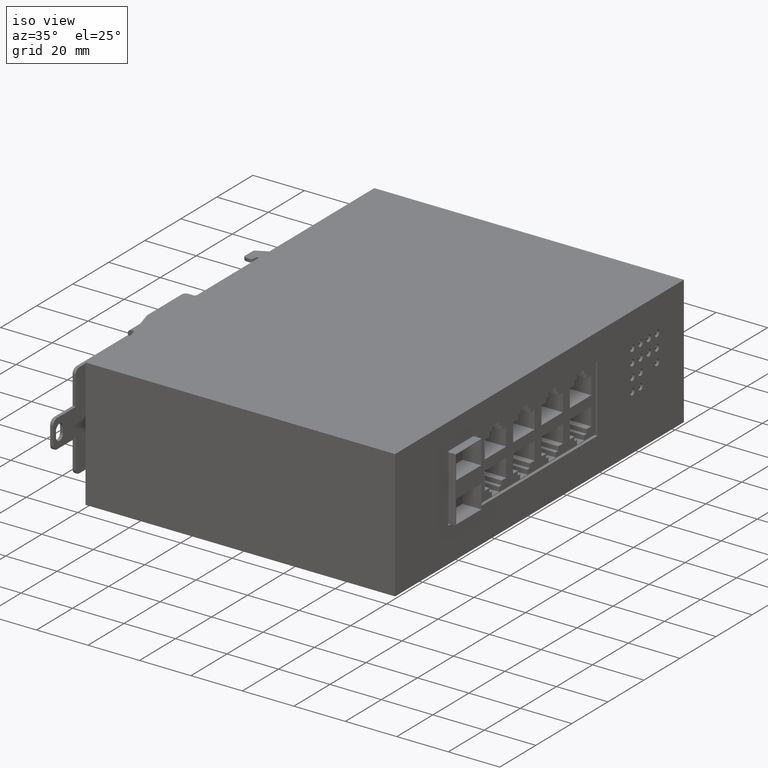
[diagram: clean part render]
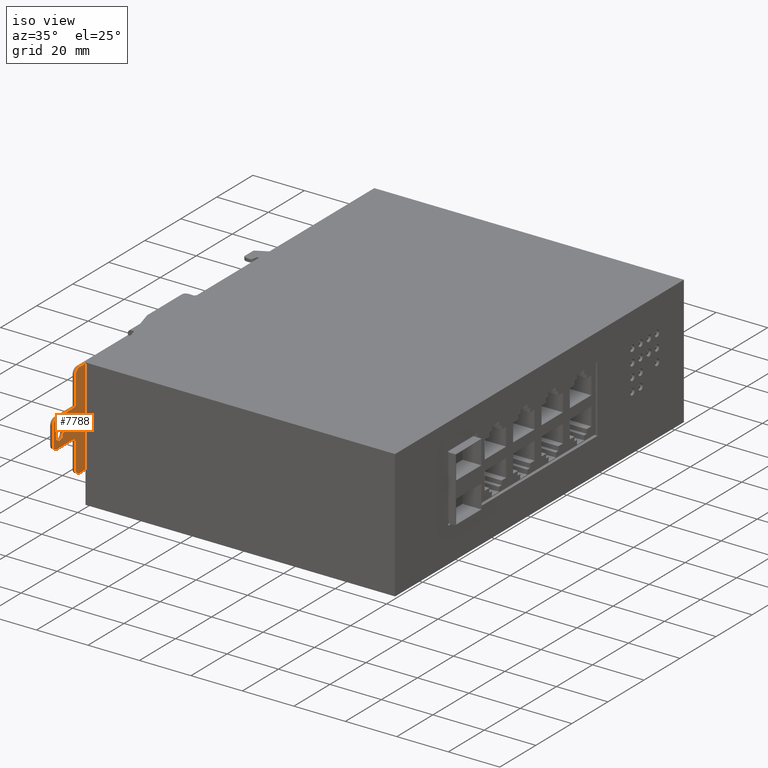
[diagram: same view with one face highlighted and labeled with its STEP entity id]
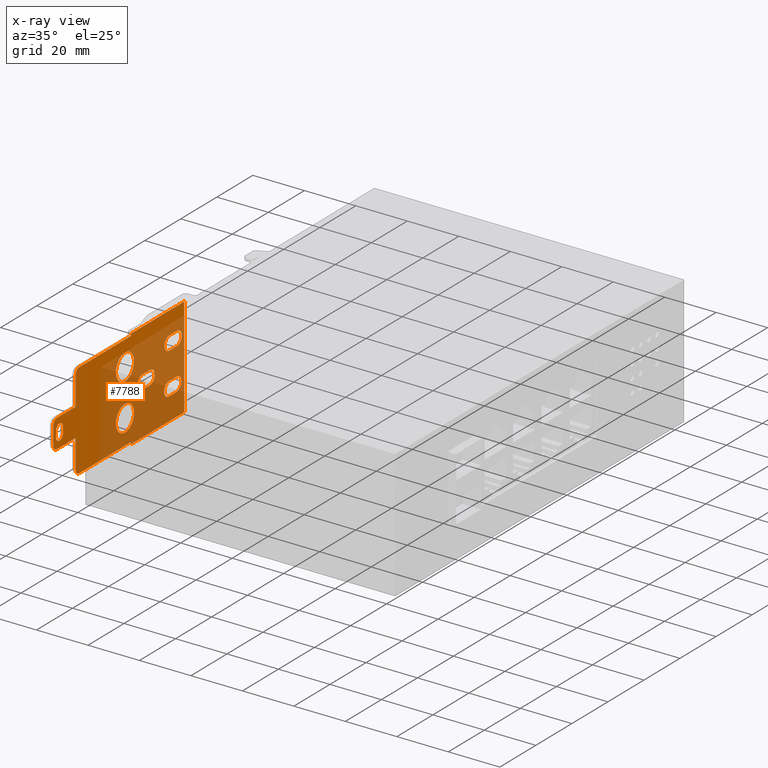
[diagram: x-ray of the same camera — body ghosted, the highlighted face saturated]
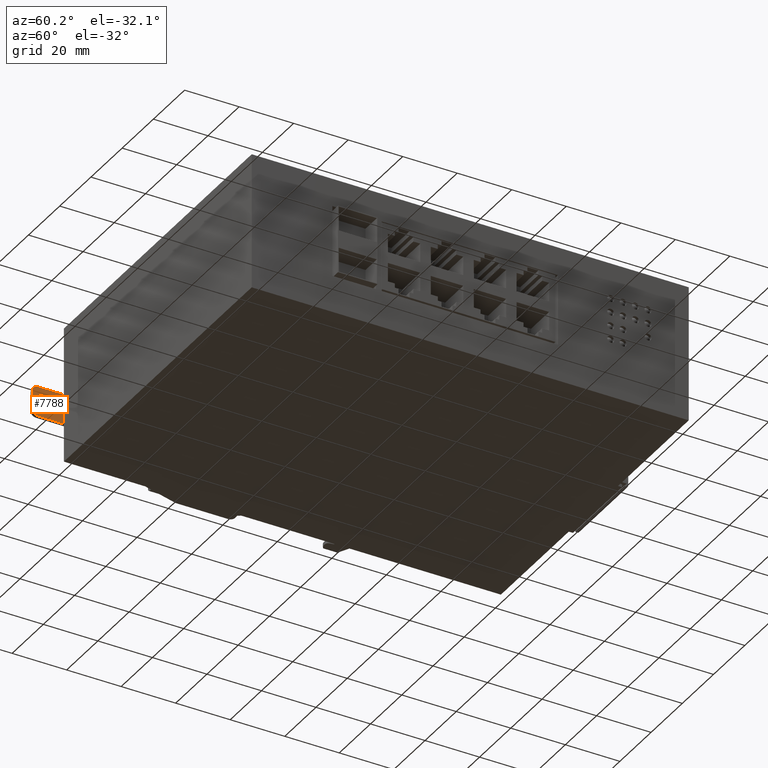
[diagram: same view with one face highlighted and labeled with its STEP entity id]
A machine part, iso view. The second image highlights one B-rep face of the part: STEP entity #7788.
The next image is the same camera in x-ray: the body ghosted, the highlighted face saturated — about 60% of this face is hidden behind the body in this view.
A second angle (auxiliary view) of the same face is appended — the face is thin or edge-on in the first view.
In plain terms, the highlighted planar face has unit normal (-1, 0, 0).
Its self-contained STEP definition (entity closure, byte-faithful):
#94 = EDGE_CURVE ( 'NONE', #6511, #10669, #11397, .T. ) ;
#101 = EDGE_CURVE ( 'NONE', #12217, #12112, #12518, .T. ) ;
#165 = ORIENTED_EDGE ( 'NONE', *, *, #7660, .F. ) ;
#315 = DIRECTION ( 'NONE',  ( 0.000000000000000000, 0.000000000000000000, 1.000000000000000000 ) ) ;
#398 = VECTOR ( 'NONE', #6258, 39.37007874015748143 ) ;
#415 = DIRECTION ( 'NONE',  ( 1.000000000000000000, -0.000000000000000000, -0.000000000000000000 ) ) ;
#424 = CARTESIAN_POINT ( 'NONE',  ( -0.1732283464566929387, 1.657480314960630086, 1.088582677165354173 ) ) ;
#425 = DIRECTION ( 'NONE',  ( 1.000000000000000000, -0.000000000000000000, -0.000000000000000000 ) ) ;
#485 = CARTESIAN_POINT ( 'NONE',  ( -0.1732283464566929387, -0.2283464566929138684, 1.023622047244094668 ) ) ;
#490 = EDGE_CURVE ( 'NONE', #14855, #6883, #12954, .T. ) ;
#556 = CIRCLE ( 'NONE', #14512, 0.1968503937007874405 ) ;
#585 = ORIENTED_EDGE ( 'NONE', *, *, #2578, .F. ) ;
#587 = CARTESIAN_POINT ( 'NONE',  ( -0.1732283464566929387, 0.2027559055118112741, 1.639763779527559029 ) ) ;
#656 = EDGE_CURVE ( 'NONE', #12631, #16464, #1152, .T. ) ;
#659 = CARTESIAN_POINT ( 'NONE',  ( -0.1732283464566929387, 0.2027559055118110243, 0.3287401574803149873 ) ) ;
#725 = VECTOR ( 'NONE', #12189, 39.37007874015748143 ) ;
#753 = CARTESIAN_POINT ( 'NONE',  ( -0.1732283464566929387, 2.574803149606299968, 1.200787401574803237 ) ) ;
#835 = DIRECTION ( 'NONE',  ( -0.000000000000000000, -0.000000000000000000, -1.000000000000000000 ) ) ;
#871 = DIRECTION ( 'NONE',  ( 0.000000000000000000, 0.000000000000000000, 1.000000000000000000 ) ) ;
#900 = DIRECTION ( 'NONE',  ( -0.000000000000000000, 0.000000000000000000, -1.000000000000000000 ) ) ;
#905 = CARTESIAN_POINT ( 'NONE',  ( -0.1732283464566929387, 1.279527559055118280, 1.141732283464567121 ) ) ;
#915 = LINE ( 'NONE', #16916, #398 ) ;
#1152 = LINE ( 'NONE', #6496, #14158 ) ;
#1162 = VERTEX_POINT ( 'NONE', #12070 ) ;
#1166 = ORIENTED_EDGE ( 'NONE', *, *, #4621, .F. ) ;
#1172 = CARTESIAN_POINT ( 'NONE',  ( -0.1732283464566929387, 2.413385826771653697, 1.194881889763779625 ) ) ;
#1209 = CARTESIAN_POINT ( 'NONE',  ( -0.1732283464566929387, 0.2814960629921260393, 1.718503937007874072 ) ) ;
#1265 = EDGE_CURVE ( 'NONE', #16464, #6652, #7267, .T. ) ;
#1292 = EDGE_CURVE ( 'NONE', #12112, #3278, #16467, .T. ) ;
#1337 = DIRECTION ( 'NONE',  ( -0.000000000000000000, -1.000000000000000000, 0.000000000000000000 ) ) ;
#1417 = ORIENTED_EDGE ( 'NONE', *, *, #94, .F. ) ;
#1481 = EDGE_CURVE ( 'NONE', #6883, #14855, #556, .T. ) ;
#1516 = ORIENTED_EDGE ( 'NONE', *, *, #17059, .F. ) ;
#1637 = DIRECTION ( 'NONE',  ( 1.000000000000000000, -0.000000000000000000, -0.000000000000000000 ) ) ;
#1666 = EDGE_CURVE ( 'NONE', #8170, #8430, #3731, .T. ) ;
#1777 = CARTESIAN_POINT ( 'NONE',  ( -0.1732283464566929387, -0.2086614173228350244, 1.122047244094488194 ) ) ;
#1782 = VERTEX_POINT ( 'NONE', #1172 ) ;
#1803 = EDGE_CURVE ( 'NONE', #8430, #16254, #915, .T. ) ;
#1909 = DIRECTION ( 'NONE',  ( 0.000000000000000000, 0.000000000000000000, 1.000000000000000000 ) ) ;
#1928 = EDGE_LOOP ( 'NONE', ( #5544, #6425, #16291, #12032, #12642, #15337, #11822, #165, #10998, #13557, #11782, #12809, #14365, #15420, #11925, #12083 ) ) ;
#1981 = EDGE_CURVE ( 'NONE', #16832, #4563, #10666, .T. ) ;
#2172 = CARTESIAN_POINT ( 'NONE',  ( -0.1732283464566929387, 2.574803149606299968, 1.718503937007874072 ) ) ;
#2205 = DIRECTION ( 'NONE',  ( 0.000000000000000000, 0.000000000000000000, 1.000000000000000000 ) ) ;
#2217 = AXIS2_PLACEMENT_3D ( 'NONE', #16691, #12756, #1909 ) ;
#2227 = CARTESIAN_POINT ( 'NONE',  ( -0.1732283464566929387, 0.2027559055118111075, 0.7677165354330708347 ) ) ;
#2307 = CARTESIAN_POINT ( 'NONE',  ( -0.1732283464566929387, 1.279527559055118280, 0.4330708661417322913 ) ) ;
#2333 = AXIS2_PLACEMENT_3D ( 'NONE', #4600, #415, #3290 ) ;
#2367 = CIRCLE ( 'NONE', #14108, 0.07874015748031462647 ) ;
#2437 = DIRECTION ( 'NONE',  ( -1.000000000000000000, 0.000000000000000000, 0.000000000000000000 ) ) ;
#2456 = CARTESIAN_POINT ( 'NONE',  ( -0.1732283464566929387, 0.2814960629921259838, 0.3287401574803149873 ) ) ;
#2477 = AXIS2_PLACEMENT_3D ( 'NONE', #7952, #8307, #4203 ) ;
#2554 = AXIS2_PLACEMENT_3D ( 'NONE', #14743, #12543, #315 ) ;
#2558 = CARTESIAN_POINT ( 'NONE',  ( -0.1732283464566929387, 2.574803149606299968, 1.750000000000000222 ) ) ;
#2566 = LINE ( 'NONE', #7554, #8246 ) ;
#2578 = EDGE_CURVE ( 'NONE', #7851, #14199, #15436, .T. ) ;
#2824 = CARTESIAN_POINT ( 'NONE',  ( -0.1732283464566929387, 2.574803149606299968, 1.194881889763779625 ) ) ;
#2995 = CARTESIAN_POINT ( 'NONE',  ( -0.1732283464566929387, 1.822834645669291431, 0.8799212598425197873 ) ) ;
#3016 = CARTESIAN_POINT ( 'NONE',  ( -0.1732283464566929387, 1.409448818897637734, 0.2185039370078739884 ) ) ;
#3176 = VERTEX_POINT ( 'NONE', #3016 ) ;
#3178 = VERTEX_POINT ( 'NONE', #485 ) ;
#3195 = ORIENTED_EDGE ( 'NONE', *, *, #1666, .F. ) ;
#3262 = DIRECTION ( 'NONE',  ( 1.000000000000000000, -0.000000000000000000, -0.000000000000000000 ) ) ;
#3278 = VERTEX_POINT ( 'NONE', #15673 ) ;
#3290 = DIRECTION ( 'NONE',  ( 0.000000000000000000, 0.000000000000000000, 1.000000000000000000 ) ) ;
#3301 = LINE ( 'NONE', #13530, #10068 ) ;
#3483 = DIRECTION ( 'NONE',  ( -0.000000000000000000, -0.000000000000000000, -1.000000000000000000 ) ) ;
#3489 = AXIS2_PLACEMENT_3D ( 'NONE', #8540, #7073, #16416 ) ;
#3529 = AXIS2_PLACEMENT_3D ( 'NONE', #14518, #9270, #9536 ) ;
#3535 = AXIS2_PLACEMENT_3D ( 'NONE', #3768, #6761, #5370 ) ;
#3566 = CARTESIAN_POINT ( 'NONE',  ( -0.1732283464566929387, 1.409448818897637734, 1.718503937007874072 ) ) ;
#3567 = ORIENTED_EDGE ( 'NONE', *, *, #1981, .F. ) ;
#3615 = VERTEX_POINT ( 'NONE', #2995 ) ;
#3647 = CARTESIAN_POINT ( 'NONE',  ( -0.1732283464566929387, 1.822834645669291431, 1.088582677165354173 ) ) ;
#3681 = ORIENTED_EDGE ( 'NONE', *, *, #101, .F. ) ;
#3731 = CIRCLE ( 'NONE', #2333, 0.1043307086614173040 ) ;
#3768 = CARTESIAN_POINT ( 'NONE',  ( -0.1732283464566929387, 2.574803149606299968, 1.750000000000000222 ) ) ;
#3867 = FACE_BOUND ( 'NONE', #13847, .T. ) ;
#3877 = CARTESIAN_POINT ( 'NONE',  ( -0.1732283464566929387, 1.409448818897637734, 1.750000000000000222 ) ) ;
#4043 = DIRECTION ( 'NONE',  ( 0.000000000000000000, 0.000000000000000000, 1.000000000000000000 ) ) ;
#4056 = ORIENTED_EDGE ( 'NONE', *, *, #5665, .F. ) ;
#4130 = CIRCLE ( 'NONE', #12506, 0.07874015748031495954 ) ;
#4203 = DIRECTION ( 'NONE',  ( 0.000000000000000000, 0.000000000000000000, 1.000000000000000000 ) ) ;
#4321 = CARTESIAN_POINT ( 'NONE',  ( -0.1732283464566929387, -0.07086614173228339419, 0.9448818897637796255 ) ) ;
#4363 = DIRECTION ( 'NONE',  ( 0.000000000000000000, 0.000000000000000000, 1.000000000000000000 ) ) ;
#4382 = VECTOR ( 'NONE', #6233, 39.37007874015748143 ) ;
#4534 = CARTESIAN_POINT ( 'NONE',  ( -0.1732283464566929387, 2.574803149606299968, 0.2185039370078740439 ) ) ;
#4563 = VERTEX_POINT ( 'NONE', #905 ) ;
#4581 = DIRECTION ( 'NONE',  ( 0.000000000000000000, 0.000000000000000000, 1.000000000000000000 ) ) ;
#4600 = CARTESIAN_POINT ( 'NONE',  ( -0.1732283464566929387, 2.405511811023622215, 0.6692913385826771977 ) ) ;
#4621 = EDGE_CURVE ( 'NONE', #10669, #1782, #9484, .T. ) ;
#4632 = CIRCLE ( 'NONE', #10499, 0.1043307086614173040 ) ;
#4649 = CIRCLE ( 'NONE', #14988, 0.07874015748031489015 ) ;
#4859 = ORIENTED_EDGE ( 'NONE', *, *, #13173, .F. ) ;
#4932 = CARTESIAN_POINT ( 'NONE',  ( -0.1732283464566929387, 1.279527559055118280, 0.6299212598425196763 ) ) ;
#4968 = ORIENTED_EDGE ( 'NONE', *, *, #1803, .F. ) ;
#4983 = DIRECTION ( 'NONE',  ( 1.000000000000000000, -0.000000000000000000, -0.000000000000000000 ) ) ;
#5000 = CARTESIAN_POINT ( 'NONE',  ( -0.1732283464566929387, 0.2027559055118111075, 1.750000000000000222 ) ) ;
#5057 = VERTEX_POINT ( 'NONE', #8319 ) ;
#5091 = ORIENTED_EDGE ( 'NONE', *, *, #1481, .F. ) ;
#5154 = EDGE_LOOP ( 'NONE', ( #4056, #1166, #1417, #14311 ) ) ;
#5180 = PLANE ( 'NONE',  #3535 ) ;
#5244 = DIRECTION ( 'NONE',  ( 0.000000000000000000, -1.000000000000000000, -0.000000000000000000 ) ) ;
#5297 = EDGE_LOOP ( 'NONE', ( #16309, #5457, #8417, #3681 ) ) ;
#5351 = VERTEX_POINT ( 'NONE', #16786 ) ;
#5370 = DIRECTION ( 'NONE',  ( 0.000000000000000000, 0.000000000000000000, 1.000000000000000000 ) ) ;
#5427 = CARTESIAN_POINT ( 'NONE',  ( -0.1732283464566929387, 2.413385826771653697, 1.403543307086614345 ) ) ;
#5437 = EDGE_CURVE ( 'NONE', #14199, #3178, #10869, .T. ) ;
#5457 = ORIENTED_EDGE ( 'NONE', *, *, #12148, .F. ) ;
#5544 = ORIENTED_EDGE ( 'NONE', *, *, #11297, .F. ) ;
#5611 = CARTESIAN_POINT ( 'NONE',  ( -0.1732283464566929387, 2.405511811023622215, 0.5649606299212599492 ) ) ;
#5626 = DIRECTION ( 'NONE',  ( 1.000000000000000000, -0.000000000000000000, -0.000000000000000000 ) ) ;
#5665 = EDGE_CURVE ( 'NONE', #1782, #14271, #4632, .T. ) ;
#5673 = CARTESIAN_POINT ( 'NONE',  ( -0.1732283464566929387, 1.279527559055118280, 0.6299212598425196763 ) ) ;
#5703 = ORIENTED_EDGE ( 'NONE', *, *, #16370, .F. ) ;
#5781 = DIRECTION ( 'NONE',  ( 0.000000000000000000, 0.000000000000000000, 1.000000000000000000 ) ) ;
#5862 = CIRCLE ( 'NONE', #12559, 0.07874015748031502893 ) ;
#5989 = AXIS2_PLACEMENT_3D ( 'NONE', #4932, #3262, #2205 ) ;
#6018 = CARTESIAN_POINT ( 'NONE',  ( -0.1732283464566929387, 1.279527559055118280, 0.8267716535433071723 ) ) ;
#6039 = VECTOR ( 'NONE', #7393, 39.37007874015748143 ) ;
#6171 = VECTOR ( 'NONE', #4043, 39.37007874015748143 ) ;
#6185 = VERTEX_POINT ( 'NONE', #2227 ) ;
#6201 = ORIENTED_EDGE ( 'NONE', *, *, #16965, .F. ) ;
#6233 = DIRECTION ( 'NONE',  ( -0.000000000000000000, -1.000000000000000000, 0.000000000000000000 ) ) ;
#6258 = DIRECTION ( 'NONE',  ( -0.000000000000000000, -1.000000000000000000, 0.000000000000000000 ) ) ;
#6264 = VERTEX_POINT ( 'NONE', #16660 ) ;
#6363 = DIRECTION ( 'NONE',  ( 1.000000000000000000, -0.000000000000000000, -0.000000000000000000 ) ) ;
#6425 = ORIENTED_EDGE ( 'NONE', *, *, #1265, .F. ) ;
#6492 = FACE_OUTER_BOUND ( 'NONE', #1928, .T. ) ;
#6496 = CARTESIAN_POINT ( 'NONE',  ( -0.1732283464566929387, 0.2027559055118111075, 1.750000000000000222 ) ) ;
#6511 = VERTEX_POINT ( 'NONE', #14070 ) ;
#6595 = CIRCLE ( 'NONE', #3489, 0.1968503937007873017 ) ;
#6613 = CARTESIAN_POINT ( 'NONE',  ( -0.1732283464566929387, -0.2086614173228348301, 1.200787401574803237 ) ) ;
#6652 = VERTEX_POINT ( 'NONE', #1209 ) ;
#6698 = CARTESIAN_POINT ( 'NONE',  ( -0.1732283464566929387, 2.574803149606299968, 0.2185039370078739884 ) ) ;
#6761 = DIRECTION ( 'NONE',  ( -1.000000000000000000, 0.000000000000000000, 0.000000000000000000 ) ) ;
#6854 = VERTEX_POINT ( 'NONE', #8393 ) ;
#6883 = VERTEX_POINT ( 'NONE', #6018 ) ;
#6899 = DIRECTION ( 'NONE',  ( 0.000000000000000000, 0.000000000000000000, 1.000000000000000000 ) ) ;
#6930 = EDGE_LOOP ( 'NONE', ( #3567, #5703 ) ) ;
#6975 = VERTEX_POINT ( 'NONE', #3566 ) ;
#7002 = DIRECTION ( 'NONE',  ( 0.000000000000000000, 1.000000000000000000, -0.000000000000000000 ) ) ;
#7073 = DIRECTION ( 'NONE',  ( 1.000000000000000000, -0.000000000000000000, -0.000000000000000000 ) ) ;
#7173 = LINE ( 'NONE', #4534, #16379 ) ;
#7195 = DIRECTION ( 'NONE',  ( 0.000000000000000000, 0.000000000000000000, 1.000000000000000000 ) ) ;
#7267 = CIRCLE ( 'NONE', #2217, 0.07874015748031448769 ) ;
#7316 = EDGE_CURVE ( 'NONE', #16737, #12631, #11506, .T. ) ;
#7379 = LINE ( 'NONE', #15590, #12829 ) ;
#7393 = DIRECTION ( 'NONE',  ( 0.000000000000000000, 1.000000000000000000, -0.000000000000000000 ) ) ;
#7487 = CARTESIAN_POINT ( 'NONE',  ( -0.1732283464566929387, 0.2814960629921260393, 0.2500000000000000000 ) ) ;
#7519 = CARTESIAN_POINT ( 'NONE',  ( -0.1732283464566929387, -0.1496062992125984370, 1.023622047244094668 ) ) ;
#7554 = CARTESIAN_POINT ( 'NONE',  ( -0.1732283464566929387, 1.409448818897637734, 1.750000000000000222 ) ) ;
#7633 = ORIENTED_EDGE ( 'NONE', *, *, #13035, .F. ) ;
#7660 = EDGE_CURVE ( 'NONE', #6185, #6264, #15322, .T. ) ;
#7788 = ADVANCED_FACE ( 'NONE', ( #9468, #6492, #17240, #10774, #13396, #3867, #15744 ), #5180, .F. ) ;
#7795 = DIRECTION ( 'NONE',  ( -1.000000000000000000, 0.000000000000000000, 0.000000000000000000 ) ) ;
#7802 = CARTESIAN_POINT ( 'NONE',  ( -0.1732283464566929387, 0.2027559055118110798, 1.200787401574803237 ) ) ;
#7809 = DIRECTION ( 'NONE',  ( 0.000000000000000000, 0.000000000000000000, 1.000000000000000000 ) ) ;
#7851 = VERTEX_POINT ( 'NONE', #8065 ) ;
#7908 = AXIS2_PLACEMENT_3D ( 'NONE', #16946, #4983, #12400 ) ;
#7943 = CARTESIAN_POINT ( 'NONE',  ( -0.1732283464566929387, 2.574803149606299968, 0.2500000000000000555 ) ) ;
#7952 = CARTESIAN_POINT ( 'NONE',  ( -0.1732283464566929387, 1.822834645669291431, 0.9842519685039370358 ) ) ;
#8065 = CARTESIAN_POINT ( 'NONE',  ( -0.1732283464566929387, -0.07086614173228339419, 1.023622047244094668 ) ) ;
#8170 = VERTEX_POINT ( 'NONE', #5611 ) ;
#8246 = VECTOR ( 'NONE', #900, 39.37007874015748143 ) ;
#8263 = VECTOR ( 'NONE', #15733, 39.37007874015748143 ) ;
#8307 = DIRECTION ( 'NONE',  ( 1.000000000000000000, -0.000000000000000000, -0.000000000000000000 ) ) ;
#8319 = CARTESIAN_POINT ( 'NONE',  ( -0.1732283464566929387, -0.2874015748031496509, 0.8464566929133858775 ) ) ;
#8393 = CARTESIAN_POINT ( 'NONE',  ( -0.1732283464566929387, 1.409448818897637734, 1.750000000000000222 ) ) ;
#8405 = EDGE_CURVE ( 'NONE', #15406, #6854, #10392, .T. ) ;
#8417 = ORIENTED_EDGE ( 'NONE', *, *, #1292, .F. ) ;
#8430 = VERTEX_POINT ( 'NONE', #17291 ) ;
#8540 = CARTESIAN_POINT ( 'NONE',  ( -0.1732283464566929387, 1.279527559055118280, 1.338582677165354395 ) ) ;
#8936 = DIRECTION ( 'NONE',  ( 0.000000000000000000, 0.000000000000000000, 1.000000000000000000 ) ) ;
#9057 = EDGE_CURVE ( 'NONE', #1162, #16737, #2367, .T. ) ;
#9143 = VECTOR ( 'NONE', #1337, 39.37007874015748143 ) ;
#9237 = EDGE_CURVE ( 'NONE', #5057, #1162, #11660, .T. ) ;
#9260 = EDGE_CURVE ( 'NONE', #6854, #6975, #2566, .T. ) ;
#9270 = DIRECTION ( 'NONE',  ( 1.000000000000000000, -0.000000000000000000, -0.000000000000000000 ) ) ;
#9384 = LINE ( 'NONE', #16024, #10918 ) ;
#9468 = FACE_BOUND ( 'NONE', #10019, .T. ) ;
#9484 = LINE ( 'NONE', #2824, #725 ) ;
#9536 = DIRECTION ( 'NONE',  ( 0.000000000000000000, 0.000000000000000000, 1.000000000000000000 ) ) ;
#9676 = EDGE_CURVE ( 'NONE', #16447, #6185, #16797, .T. ) ;
#9795 = VECTOR ( 'NONE', #12061, 39.37007874015748143 ) ;
#9968 = VECTOR ( 'NONE', #3483, 39.37007874015748143 ) ;
#10019 = EDGE_LOOP ( 'NONE', ( #16237, #7633, #16130, #585, #1516 ) ) ;
#10068 = VECTOR ( 'NONE', #7002, 39.37007874015748143 ) ;
#10263 = CARTESIAN_POINT ( 'NONE',  ( -0.1732283464566929387, 2.574803149606299968, 0.7677165354330708347 ) ) ;
#10271 = DIRECTION ( 'NONE',  ( 0.000000000000000000, 0.000000000000000000, 1.000000000000000000 ) ) ;
#10392 = LINE ( 'NONE', #14591, #13556 ) ;
#10395 = LINE ( 'NONE', #2172, #16096 ) ;
#10476 = DIRECTION ( 'NONE',  ( 0.000000000000000000, 0.000000000000000000, 1.000000000000000000 ) ) ;
#10499 = AXIS2_PLACEMENT_3D ( 'NONE', #16683, #425, #4363 ) ;
#10537 = EDGE_CURVE ( 'NONE', #14271, #6511, #17252, .T. ) ;
#10666 = CIRCLE ( 'NONE', #2554, 0.1968503937007873017 ) ;
#10669 = VERTEX_POINT ( 'NONE', #12093 ) ;
#10774 = FACE_BOUND ( 'NONE', #5154, .T. ) ;
#10863 = CIRCLE ( 'NONE', #2477, 0.1043307086614173040 ) ;
#10865 = CARTESIAN_POINT ( 'NONE',  ( -0.1732283464566929387, 2.248031496062992574, 1.299212598425196985 ) ) ;
#10869 = CIRCLE ( 'NONE', #16176, 0.07874015748031502893 ) ;
#10899 = EDGE_CURVE ( 'NONE', #14852, #16447, #4130, .T. ) ;
#10918 = VECTOR ( 'NONE', #12013, 39.37007874015748143 ) ;
#10970 = CARTESIAN_POINT ( 'NONE',  ( -0.1732283464566929387, 1.279527559055118280, 1.535433070866141669 ) ) ;
#10998 = ORIENTED_EDGE ( 'NONE', *, *, #9676, .F. ) ;
#11024 = CARTESIAN_POINT ( 'NONE',  ( -0.1732283464566929387, 2.574803149606299968, 1.088582677165354173 ) ) ;
#11254 = EDGE_CURVE ( 'NONE', #6264, #5057, #4649, .T. ) ;
#11297 = EDGE_CURVE ( 'NONE', #6652, #6975, #10395, .T. ) ;
#11397 = CIRCLE ( 'NONE', #13067, 0.1043307086614173040 ) ;
#11506 = LINE ( 'NONE', #753, #6039 ) ;
#11541 = CARTESIAN_POINT ( 'NONE',  ( -0.1732283464566929387, -0.2283464566929139239, 1.750000000000000222 ) ) ;
#11660 = LINE ( 'NONE', #14198, #11879 ) ;
#11686 = DIRECTION ( 'NONE',  ( 0.000000000000000000, 0.000000000000000000, 1.000000000000000000 ) ) ;
#11701 = EDGE_CURVE ( 'NONE', #13704, #15707, #5862, .T. ) ;
#11782 = ORIENTED_EDGE ( 'NONE', *, *, #11943, .F. ) ;
#11791 = CARTESIAN_POINT ( 'NONE',  ( -0.1732283464566929387, -0.2086614173228350244, 0.8464566929133858775 ) ) ;
#11822 = ORIENTED_EDGE ( 'NONE', *, *, #11254, .F. ) ;
#11879 = VECTOR ( 'NONE', #10271, 39.37007874015748143 ) ;
#11925 = ORIENTED_EDGE ( 'NONE', *, *, #8405, .T. ) ;
#11943 = EDGE_CURVE ( 'NONE', #12521, #14852, #14682, .T. ) ;
#11969 = CARTESIAN_POINT ( 'NONE',  ( -0.1732283464566929387, 2.240157480314960647, 0.7736220472440944462 ) ) ;
#12013 = DIRECTION ( 'NONE',  ( 0.000000000000000000, 0.000000000000000000, 1.000000000000000000 ) ) ;
#12032 = ORIENTED_EDGE ( 'NONE', *, *, #7316, .F. ) ;
#12061 = DIRECTION ( 'NONE',  ( -0.000000000000000000, -1.000000000000000000, 0.000000000000000000 ) ) ;
#12070 = CARTESIAN_POINT ( 'NONE',  ( -0.1732283464566929387, -0.2874015748031495954, 1.122047244094488194 ) ) ;
#12083 = ORIENTED_EDGE ( 'NONE', *, *, #9260, .T. ) ;
#12093 = CARTESIAN_POINT ( 'NONE',  ( -0.1732283464566929387, 2.248031496062992574, 1.194881889763779625 ) ) ;
#12112 = VERTEX_POINT ( 'NONE', #424 ) ;
#12148 = EDGE_CURVE ( 'NONE', #3278, #3615, #3301, .T. ) ;
#12189 = DIRECTION ( 'NONE',  ( 0.000000000000000000, 1.000000000000000000, -0.000000000000000000 ) ) ;
#12204 = CIRCLE ( 'NONE', #3529, 0.1043307086614173040 ) ;
#12217 = VERTEX_POINT ( 'NONE', #3647 ) ;
#12400 = DIRECTION ( 'NONE',  ( 0.000000000000000000, 0.000000000000000000, 1.000000000000000000 ) ) ;
#12506 = AXIS2_PLACEMENT_3D ( 'NONE', #2456, #7795, #8936 ) ;
#12518 = LINE ( 'NONE', #11024, #15861 ) ;
#12521 = VERTEX_POINT ( 'NONE', #16719 ) ;
#12543 = DIRECTION ( 'NONE',  ( 1.000000000000000000, -0.000000000000000000, -0.000000000000000000 ) ) ;
#12559 = AXIS2_PLACEMENT_3D ( 'NONE', #12994, #6363, #11686 ) ;
#12631 = VERTEX_POINT ( 'NONE', #7802 ) ;
#12642 = ORIENTED_EDGE ( 'NONE', *, *, #9057, .F. ) ;
#12756 = DIRECTION ( 'NONE',  ( -1.000000000000000000, 0.000000000000000000, 0.000000000000000000 ) ) ;
#12809 = ORIENTED_EDGE ( 'NONE', *, *, #17134, .F. ) ;
#12829 = VECTOR ( 'NONE', #12963, 39.37007874015748143 ) ;
#12851 = DIRECTION ( 'NONE',  ( 1.000000000000000000, -0.000000000000000000, -0.000000000000000000 ) ) ;
#12900 = ORIENTED_EDGE ( 'NONE', *, *, #490, .F. ) ;
#12954 = CIRCLE ( 'NONE', #5989, 0.1968503937007874405 ) ;
#12963 = DIRECTION ( 'NONE',  ( 0.000000000000000000, 1.000000000000000000, -0.000000000000000000 ) ) ;
#12977 = CARTESIAN_POINT ( 'NONE',  ( -0.1732283464566929387, 2.574803149606299968, 1.750000000000000222 ) ) ;
#12994 = CARTESIAN_POINT ( 'NONE',  ( -0.1732283464566929387, -0.1496062992125984370, 0.9448818897637796255 ) ) ;
#13035 = EDGE_CURVE ( 'NONE', #3178, #13704, #15462, .T. ) ;
#13067 = AXIS2_PLACEMENT_3D ( 'NONE', #10865, #5626, #7195 ) ;
#13173 = EDGE_CURVE ( 'NONE', #16254, #5351, #12204, .T. ) ;
#13244 = EDGE_CURVE ( 'NONE', #3176, #15010, #7173, .T. ) ;
#13396 = FACE_BOUND ( 'NONE', #5297, .T. ) ;
#13530 = CARTESIAN_POINT ( 'NONE',  ( -0.1732283464566929387, 2.574803149606299968, 0.8799212598425197873 ) ) ;
#13556 = VECTOR ( 'NONE', #5244, 39.37007874015748143 ) ;
#13557 = ORIENTED_EDGE ( 'NONE', *, *, #10899, .F. ) ;
#13704 = VERTEX_POINT ( 'NONE', #16239 ) ;
#13741 = DIRECTION ( 'NONE',  ( -0.000000000000000000, -1.000000000000000000, 0.000000000000000000 ) ) ;
#13796 = DIRECTION ( 'NONE',  ( 0.000000000000000000, 1.000000000000000000, 0.000000000000000000 ) ) ;
#13798 = EDGE_CURVE ( 'NONE', #15406, #15010, #16999, .T. ) ;
#13847 = EDGE_LOOP ( 'NONE', ( #5091, #12900 ) ) ;
#14070 = CARTESIAN_POINT ( 'NONE',  ( -0.1732283464566929387, 2.248031496062992574, 1.403543307086614345 ) ) ;
#14108 = AXIS2_PLACEMENT_3D ( 'NONE', #1777, #15157, #4581 ) ;
#14158 = VECTOR ( 'NONE', #7809, 39.37007874015748143 ) ;
#14198 = CARTESIAN_POINT ( 'NONE',  ( -0.1732283464566929387, -0.2874015748031496509, 1.750000000000000222 ) ) ;
#14199 = VERTEX_POINT ( 'NONE', #14523 ) ;
#14247 = DIRECTION ( 'NONE',  ( 0.000000000000000000, 1.000000000000000000, -0.000000000000000000 ) ) ;
#14271 = VERTEX_POINT ( 'NONE', #5427 ) ;
#14311 = ORIENTED_EDGE ( 'NONE', *, *, #10537, .F. ) ;
#14316 = EDGE_CURVE ( 'NONE', #3615, #12217, #10863, .T. ) ;
#14365 = ORIENTED_EDGE ( 'NONE', *, *, #13244, .T. ) ;
#14512 = AXIS2_PLACEMENT_3D ( 'NONE', #5673, #1637, #6899 ) ;
#14518 = CARTESIAN_POINT ( 'NONE',  ( -0.1732283464566929387, 2.240157480314960647, 0.6692913385826771977 ) ) ;
#14523 = CARTESIAN_POINT ( 'NONE',  ( -0.1732283464566929387, -0.1496062992125984370, 1.102362204724409711 ) ) ;
#14556 = CARTESIAN_POINT ( 'NONE',  ( -0.1732283464566929387, 2.574803149606299968, 1.403543307086614345 ) ) ;
#14591 = CARTESIAN_POINT ( 'NONE',  ( -0.1732283464566929387, 2.574803149606299968, 1.750000000000000222 ) ) ;
#14682 = LINE ( 'NONE', #7943, #9795 ) ;
#14743 = CARTESIAN_POINT ( 'NONE',  ( -0.1732283464566929387, 1.279527559055118280, 1.338582677165354395 ) ) ;
#14852 = VERTEX_POINT ( 'NONE', #7487 ) ;
#14855 = VERTEX_POINT ( 'NONE', #2307 ) ;
#14897 = EDGE_LOOP ( 'NONE', ( #3195, #6201, #4859, #4968 ) ) ;
#14988 = AXIS2_PLACEMENT_3D ( 'NONE', #11791, #2437, #10476 ) ;
#15010 = VERTEX_POINT ( 'NONE', #6698 ) ;
#15157 = DIRECTION ( 'NONE',  ( -1.000000000000000000, 0.000000000000000000, 0.000000000000000000 ) ) ;
#15291 = DIRECTION ( 'NONE',  ( 1.000000000000000000, -0.000000000000000000, -0.000000000000000000 ) ) ;
#15322 = LINE ( 'NONE', #10263, #4382 ) ;
#15337 = ORIENTED_EDGE ( 'NONE', *, *, #9237, .F. ) ;
#15406 = VERTEX_POINT ( 'NONE', #2558 ) ;
#15420 = ORIENTED_EDGE ( 'NONE', *, *, #13798, .F. ) ;
#15436 = CIRCLE ( 'NONE', #7908, 0.07874015748031502893 ) ;
#15462 = LINE ( 'NONE', #11541, #9968 ) ;
#15590 = CARTESIAN_POINT ( 'NONE',  ( -0.1732283464566929387, 2.574803149606299968, 0.5649606299212599492 ) ) ;
#15673 = CARTESIAN_POINT ( 'NONE',  ( -0.1732283464566929387, 1.657480314960630086, 0.8799212598425197873 ) ) ;
#15707 = VERTEX_POINT ( 'NONE', #4321 ) ;
#15733 = DIRECTION ( 'NONE',  ( 0.000000000000000000, 0.000000000000000000, 1.000000000000000000 ) ) ;
#15744 = FACE_BOUND ( 'NONE', #6930, .T. ) ;
#15853 = LINE ( 'NONE', #3877, #6171 ) ;
#15861 = VECTOR ( 'NONE', #13741, 39.37007874015748143 ) ;
#16024 = CARTESIAN_POINT ( 'NONE',  ( -0.1732283464566929387, -0.07086614173228331093, 1.750000000000000222 ) ) ;
#16096 = VECTOR ( 'NONE', #14247, 39.37007874015748143 ) ;
#16130 = ORIENTED_EDGE ( 'NONE', *, *, #5437, .F. ) ;
#16176 = AXIS2_PLACEMENT_3D ( 'NONE', #7519, #12851, #871 ) ;
#16237 = ORIENTED_EDGE ( 'NONE', *, *, #11701, .F. ) ;
#16239 = CARTESIAN_POINT ( 'NONE',  ( -0.1732283464566929387, -0.2283464566929136463, 0.9448818897637796255 ) ) ;
#16254 = VERTEX_POINT ( 'NONE', #11969 ) ;
#16291 = ORIENTED_EDGE ( 'NONE', *, *, #656, .F. ) ;
#16309 = ORIENTED_EDGE ( 'NONE', *, *, #14316, .F. ) ;
#16370 = EDGE_CURVE ( 'NONE', #4563, #16832, #6595, .T. ) ;
#16379 = VECTOR ( 'NONE', #13796, 39.37007874015748143 ) ;
#16416 = DIRECTION ( 'NONE',  ( 0.000000000000000000, 0.000000000000000000, 1.000000000000000000 ) ) ;
#16447 = VERTEX_POINT ( 'NONE', #659 ) ;
#16464 = VERTEX_POINT ( 'NONE', #587 ) ;
#16467 = CIRCLE ( 'NONE', #17025, 0.1043307086614173040 ) ;
#16592 = CARTESIAN_POINT ( 'NONE',  ( -0.1732283464566929387, 1.657480314960630086, 0.9842519685039370358 ) ) ;
#16660 = CARTESIAN_POINT ( 'NONE',  ( -0.1732283464566929387, -0.2086614173228348301, 0.7677165354330710567 ) ) ;
#16683 = CARTESIAN_POINT ( 'NONE',  ( -0.1732283464566929387, 2.413385826771653697, 1.299212598425196985 ) ) ;
#16691 = CARTESIAN_POINT ( 'NONE',  ( -0.1732283464566929387, 0.2814960629921259838, 1.639763779527559029 ) ) ;
#16719 = CARTESIAN_POINT ( 'NONE',  ( -0.1732283464566929387, 1.409448818897637734, 0.2500000000000000555 ) ) ;
#16737 = VERTEX_POINT ( 'NONE', #6613 ) ;
#16786 = CARTESIAN_POINT ( 'NONE',  ( -0.1732283464566929387, 2.240157480314960647, 0.5649606299212599492 ) ) ;
#16797 = LINE ( 'NONE', #5000, #8263 ) ;
#16832 = VERTEX_POINT ( 'NONE', #10970 ) ;
#16916 = CARTESIAN_POINT ( 'NONE',  ( -0.1732283464566929387, 2.574803149606299968, 0.7736220472440944462 ) ) ;
#16946 = CARTESIAN_POINT ( 'NONE',  ( -0.1732283464566929387, -0.1496062992125984370, 1.023622047244094668 ) ) ;
#16965 = EDGE_CURVE ( 'NONE', #5351, #8170, #7379, .T. ) ;
#16999 = LINE ( 'NONE', #12977, #17234 ) ;
#17025 = AXIS2_PLACEMENT_3D ( 'NONE', #16592, #15291, #5781 ) ;
#17059 = EDGE_CURVE ( 'NONE', #15707, #7851, #9384, .T. ) ;
#17134 = EDGE_CURVE ( 'NONE', #3176, #12521, #15853, .T. ) ;
#17234 = VECTOR ( 'NONE', #835, 39.37007874015748143 ) ;
#17240 = FACE_BOUND ( 'NONE', #14897, .T. ) ;
#17252 = LINE ( 'NONE', #14556, #9143 ) ;
#17291 = CARTESIAN_POINT ( 'NONE',  ( -0.1732283464566929387, 2.405511811023622215, 0.7736220472440944462 ) ) ;